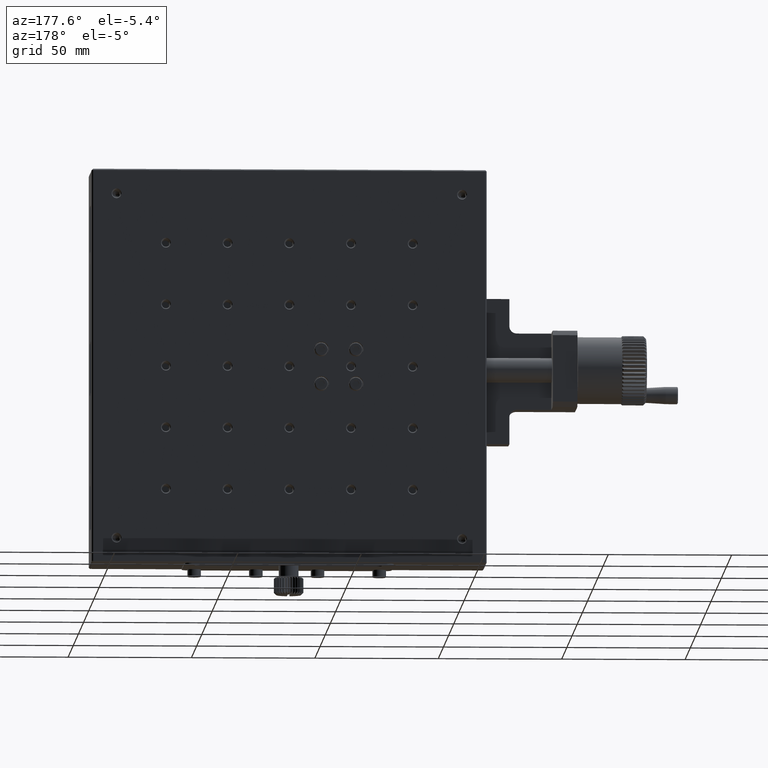
[diagram: clean part render]
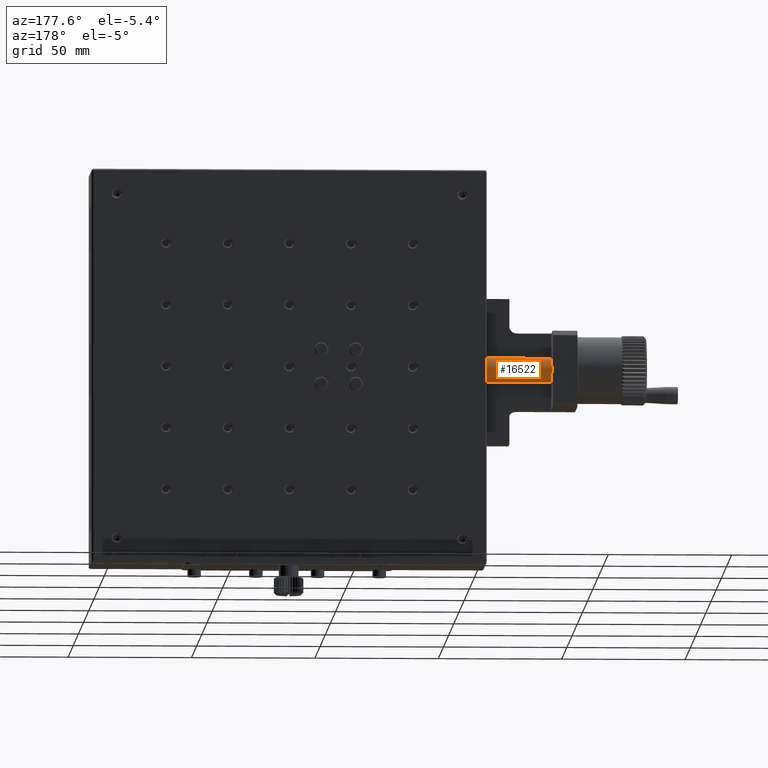
[diagram: same view with one face highlighted and labeled with its STEP entity id]
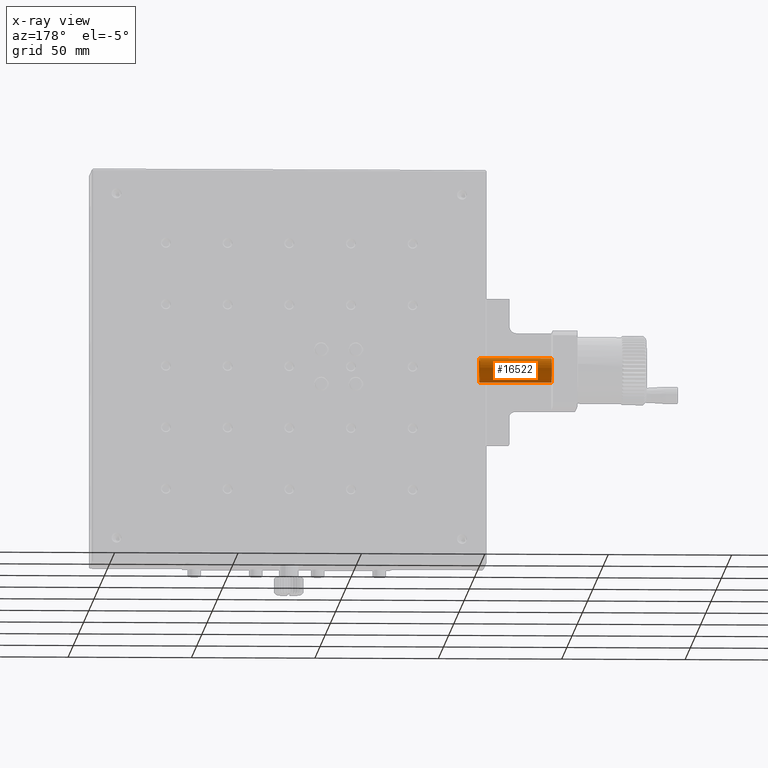
[diagram: x-ray of the same camera — body ghosted, the highlighted face saturated]
A machine part, auxiliary view. The second image highlights one B-rep face of the part: STEP entity #16522.
The next image is the same camera in x-ray: the body ghosted, the highlighted face saturated — about 0% of this face is hidden behind the body in this view.
In plain terms, the highlighted cylindrical surface (bore or boss wall) has radius 5 mm, axis along (1, 0, 0).
Its self-contained STEP definition (entity closure, byte-faithful):
#9199 = EDGE_CURVE ( 'NONE', #37303, #37303, #46803, .T. ) ;
#11697 = EDGE_LOOP ( 'NONE', ( #19209 ) ) ;
#14922 = DIRECTION ( 'NONE',  ( 1.000000000000000000, 0.000000000000000000, 0.000000000000000000 ) ) ;
#15903 = AXIS2_PLACEMENT_3D ( 'NONE', #65300, #21839, #65993 ) ;
#16522 = ADVANCED_FACE ( 'NONE', ( #30347, #48128 ), #48841, .T. ) ;
#17489 = DIRECTION ( 'NONE',  ( 0.000000000000000000, 0.000000000000000000, -1.000000000000000000 ) ) ;
#19209 = ORIENTED_EDGE ( 'NONE', *, *, #9199, .F. ) ;
#20865 = CARTESIAN_POINT ( 'NONE',  ( -186.8000000000620275, 15.50000000000000000, -4.999999999938609108 ) ) ;
#21839 = DIRECTION ( 'NONE',  ( -1.000000000000000000, -0.000000000000000000, -0.000000000000000000 ) ) ;
#23353 = EDGE_CURVE ( 'NONE', #70740, #70740, #55547, .T. ) ;
#27053 = ORIENTED_EDGE ( 'NONE', *, *, #23353, .T. ) ;
#28065 = DIRECTION ( 'NONE',  ( -1.000000000000000000, -0.000000000000000000, -0.000000000000000000 ) ) ;
#30347 = FACE_OUTER_BOUND ( 'NONE', #11697, .T. ) ;
#36578 = EDGE_LOOP ( 'NONE', ( #27053 ) ) ;
#37303 = VERTEX_POINT ( 'NONE', #20865 ) ;
#41979 = CARTESIAN_POINT ( 'NONE',  ( -157.5999999999999659, 15.50000000000000000, -5.000000000000000000 ) ) ;
#42140 = AXIS2_PLACEMENT_3D ( 'NONE', #54748, #28065, #17489 ) ;
#43009 = DIRECTION ( 'NONE',  ( 0.000000000000000000, 0.000000000000000000, -1.000000000000000000 ) ) ;
#46803 = CIRCLE ( 'NONE', #42140, 4.999999999938609108 ) ;
#48128 = FACE_OUTER_BOUND ( 'NONE', #36578, .T. ) ;
#48841 = CYLINDRICAL_SURFACE ( 'NONE', #55656, 5.000000000000000000 ) ;
#54748 = CARTESIAN_POINT ( 'NONE',  ( -186.8000000000620275, 15.50000000000000000, 0.000000000000000000 ) ) ;
#55547 = CIRCLE ( 'NONE', #15903, 5.000000000000000000 ) ;
#55656 = AXIS2_PLACEMENT_3D ( 'NONE', #64882, #14922, #43009 ) ;
#64882 = CARTESIAN_POINT ( 'NONE',  ( 250.0000000000000000, 15.50000000000000000, 0.000000000000000000 ) ) ;
#65300 = CARTESIAN_POINT ( 'NONE',  ( -157.5999999999999659, 15.50000000000000000, 0.000000000000000000 ) ) ;
#65993 = DIRECTION ( 'NONE',  ( 0.000000000000000000, 0.000000000000000000, -1.000000000000000000 ) ) ;
#70740 = VERTEX_POINT ( 'NONE', #41979 ) ;